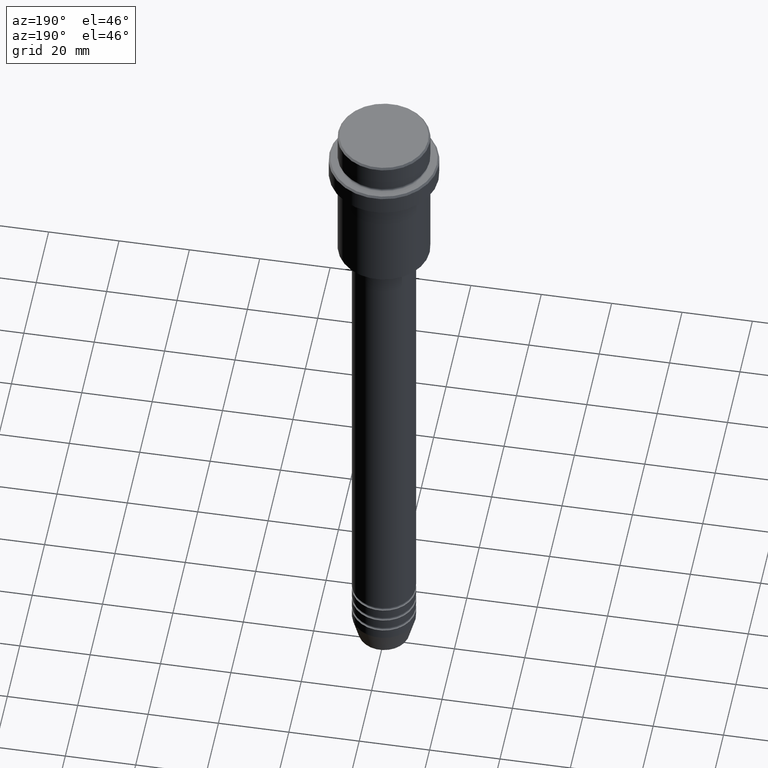
[diagram: clean part render]
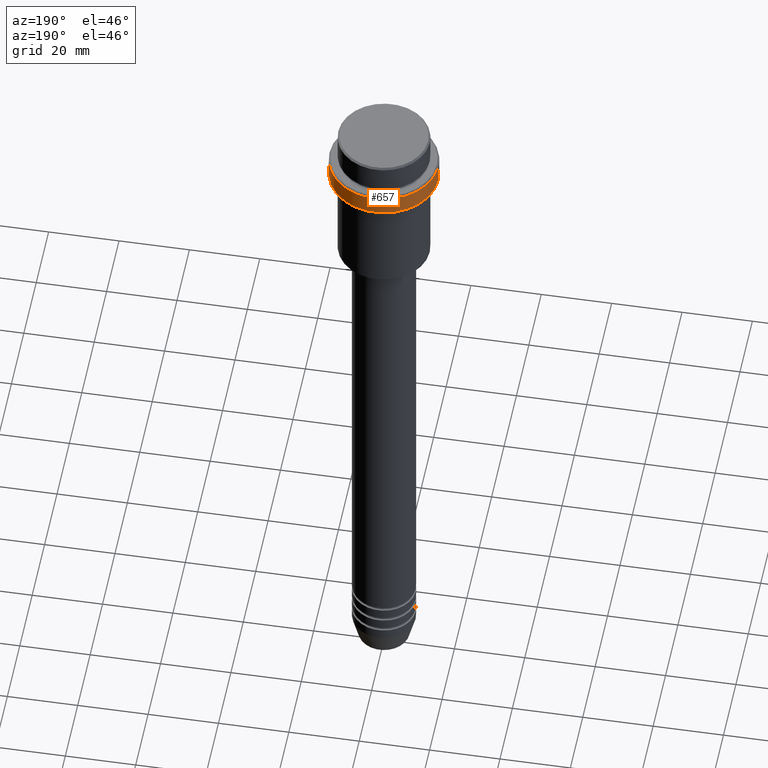
[diagram: same view with one face highlighted and labeled with its STEP entity id]
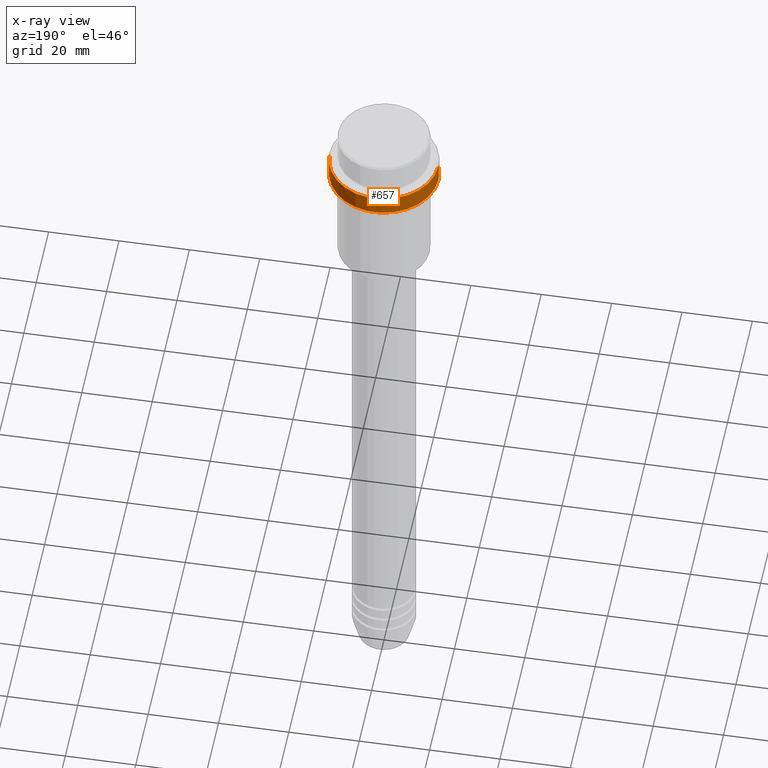
[diagram: x-ray of the same camera — body ghosted, the highlighted face saturated]
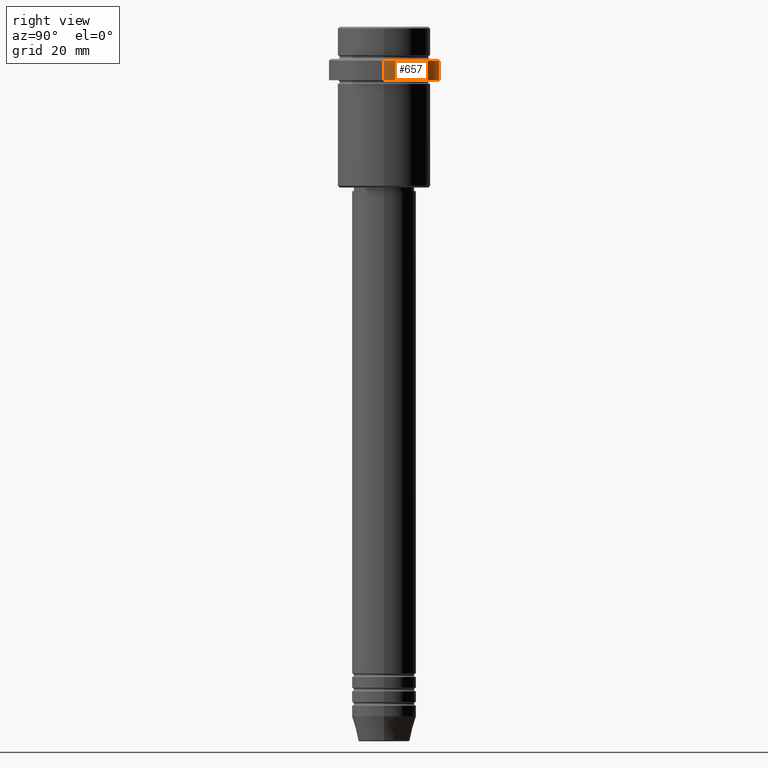
[diagram: same view with one face highlighted and labeled with its STEP entity id]
A machine part, auxiliary view. The second image highlights one B-rep face of the part: STEP entity #657.
The next image is the same camera in x-ray: the body ghosted, the highlighted face saturated — about 0% of this face is hidden behind the body in this view.
A second angle (right view) of the same face is appended — the face is thin or edge-on in the first view.
In plain terms, the highlighted cylindrical surface (partial cylindrical patch) has radius 15.5 mm, axis along (-0, -0, 1).
Its self-contained STEP definition (entity closure, byte-faithful):
#128 = VERTEX_POINT ( 'NONE', #578 ) ;
#138 = EDGE_CURVE ( 'NONE', #1104, #880, #925, .T. ) ;
#194 = CARTESIAN_POINT ( 'NONE',  ( -15.50000000000000000, 1.898202538678397557E-15, -15.00000000000000178 ) ) ;
#243 = EDGE_LOOP ( 'NONE', ( #672, #1333, #1260, #867 ) ) ;
#265 = EDGE_CURVE ( 'NONE', #128, #1017, #493, .T. ) ;
#279 = DIRECTION ( 'NONE',  ( -0.000000000000000000, -0.000000000000000000, 1.000000000000000000 ) ) ;
#313 = DIRECTION ( 'NONE',  ( 1.000000000000000000, 0.000000000000000000, 0.000000000000000000 ) ) ;
#325 = DIRECTION ( 'NONE',  ( -0.000000000000000000, -0.000000000000000000, 1.000000000000000000 ) ) ;
#420 = CYLINDRICAL_SURFACE ( 'NONE', #1292, 15.50000000000000000 ) ;
#454 = CARTESIAN_POINT ( 'NONE',  ( -15.50000000000000000, 1.898202538678397557E-15, -9.499999999999985789 ) ) ;
#493 = LINE ( 'NONE', #1283, #1362 ) ;
#520 = CARTESIAN_POINT ( 'NONE',  ( 0.000000000000000000, 0.000000000000000000, 0.000000000000000000 ) ) ;
#578 = CARTESIAN_POINT ( 'NONE',  ( 15.50000000000000000, 0.000000000000000000, -15.00000000000000178 ) ) ;
#585 = AXIS2_PLACEMENT_3D ( 'NONE', #851, #1296, #1400 ) ;
#657 = ADVANCED_FACE ( 'NONE', ( #1077 ), #420, .T. ) ;
#672 = ORIENTED_EDGE ( 'NONE', *, *, #697, .T. ) ;
#697 = EDGE_CURVE ( 'NONE', #128, #1104, #976, .T. ) ;
#705 = CARTESIAN_POINT ( 'NONE',  ( 15.50000000000000000, 0.000000000000000000, -9.499999999999985789 ) ) ;
#839 = DIRECTION ( 'NONE',  ( -0.000000000000000000, -0.000000000000000000, 1.000000000000000000 ) ) ;
#851 = CARTESIAN_POINT ( 'NONE',  ( 0.000000000000000000, 0.000000000000000000, -9.499999999999985789 ) ) ;
#867 = ORIENTED_EDGE ( 'NONE', *, *, #265, .F. ) ;
#880 = VERTEX_POINT ( 'NONE', #454 ) ;
#906 = CARTESIAN_POINT ( 'NONE',  ( -15.50000000000000000, 1.898202538678397557E-15, 0.000000000000000000 ) ) ;
#925 = LINE ( 'NONE', #906, #1313 ) ;
#961 = DIRECTION ( 'NONE',  ( -0.000000000000000000, -0.000000000000000000, 1.000000000000000000 ) ) ;
#976 = CIRCLE ( 'NONE', #1064, 15.50000000000000000 ) ;
#986 = CARTESIAN_POINT ( 'NONE',  ( 0.000000000000000000, 0.000000000000000000, -15.00000000000000178 ) ) ;
#1017 = VERTEX_POINT ( 'NONE', #705 ) ;
#1064 = AXIS2_PLACEMENT_3D ( 'NONE', #986, #325, #1070 ) ;
#1070 = DIRECTION ( 'NONE',  ( 1.000000000000000000, 0.000000000000000000, 0.000000000000000000 ) ) ;
#1077 = FACE_OUTER_BOUND ( 'NONE', #243, .T. ) ;
#1104 = VERTEX_POINT ( 'NONE', #194 ) ;
#1260 = ORIENTED_EDGE ( 'NONE', *, *, #1369, .T. ) ;
#1283 = CARTESIAN_POINT ( 'NONE',  ( 15.50000000000000000, 0.000000000000000000, 0.000000000000000000 ) ) ;
#1292 = AXIS2_PLACEMENT_3D ( 'NONE', #520, #961, #313 ) ;
#1296 = DIRECTION ( 'NONE',  ( 0.000000000000000000, 0.000000000000000000, -1.000000000000000000 ) ) ;
#1313 = VECTOR ( 'NONE', #279, 1000.000000000000000 ) ;
#1322 = CIRCLE ( 'NONE', #585, 15.50000000000000000 ) ;
#1333 = ORIENTED_EDGE ( 'NONE', *, *, #138, .T. ) ;
#1362 = VECTOR ( 'NONE', #839, 1000.000000000000000 ) ;
#1369 = EDGE_CURVE ( 'NONE', #880, #1017, #1322, .T. ) ;
#1400 = DIRECTION ( 'NONE',  ( 1.000000000000000000, 0.000000000000000000, 0.000000000000000000 ) ) ;